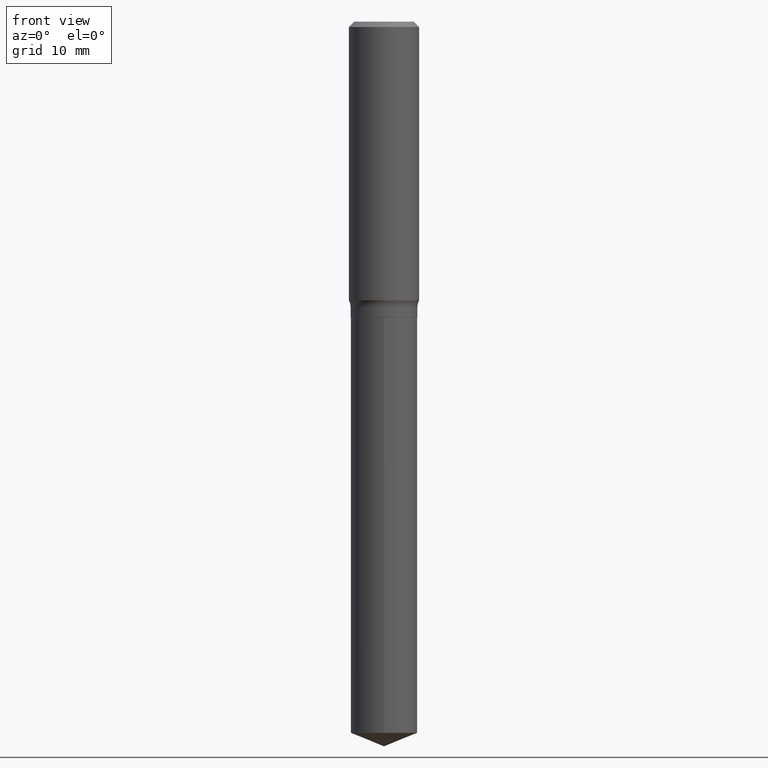
[diagram: clean part render]
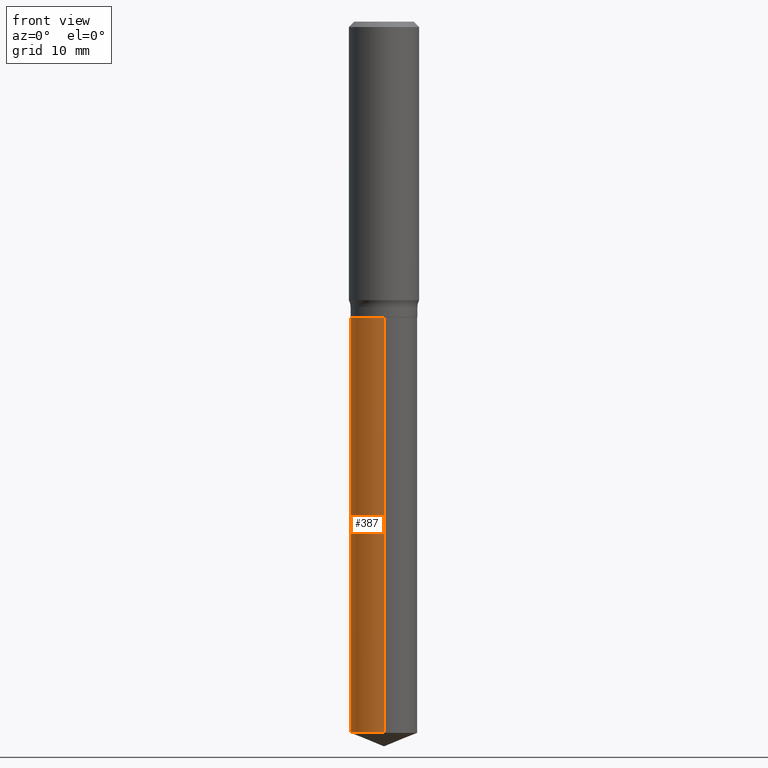
[diagram: same view with one face highlighted and labeled with its STEP entity id]
A machine part, front view. The second image highlights one B-rep face of the part: STEP entity #387.
In plain terms, the highlighted cylindrical surface (edge-blend (fillet) strip) has radius 4.7498 mm, axis along (-0, 0, 1).
Its self-contained STEP definition (entity closure, byte-faithful):
#25 = CIRCLE ( 'NONE', #307, 0.1869999999999999996 ) ;
#35 = ORIENTED_EDGE ( 'NONE', *, *, #468, .T. ) ;
#36 = FACE_OUTER_BOUND ( 'NONE', #207, .T. ) ;
#44 = CARTESIAN_POINT ( 'NONE',  ( 4.043338124146503856E-29, -5.772815245643255193E-15, -1.653399999999999537 ) ) ;
#46 = EDGE_CURVE ( 'NONE', #192, #179, #279, .T. ) ;
#69 = CARTESIAN_POINT ( 'NONE',  ( 1.328714915871427774E-15, 0.1869999999999942542, -1.653400000000000203 ) ) ;
#113 = DIRECTION ( 'NONE',  ( -6.982962677686266711E-15, -1.000000000000000000, 2.921762560068730595E-15 ) ) ;
#145 = LINE ( 'NONE', #297, #465 ) ;
#153 = CARTESIAN_POINT ( 'NONE',  ( 4.043338124146503856E-29, -5.772815245643255193E-15, -1.653399999999999537 ) ) ;
#170 = DIRECTION ( 'NONE',  ( -2.445507172700810819E-29, 3.491426395809013811E-15, 1.000000000000000000 ) ) ;
#179 = VERTEX_POINT ( 'NONE', #372 ) ;
#185 = EDGE_CURVE ( 'NONE', #435, #192, #252, .T. ) ;
#186 = CYLINDRICAL_SURFACE ( 'NONE', #423, 0.1869999999999999996 ) ;
#192 = VERTEX_POINT ( 'NONE', #298 ) ;
#207 = EDGE_LOOP ( 'NONE', ( #448, #35, #426, #368 ) ) ;
#231 = CARTESIAN_POINT ( 'NONE',  ( 1.328714915871484769E-15, 0.1869999999999861218, -3.979447095768826603 ) ) ;
#252 = LINE ( 'NONE', #69, #419 ) ;
#278 = DIRECTION ( 'NONE',  ( -6.982962677686266711E-15, -1.000000000000000000, 2.921762560068730595E-15 ) ) ;
#279 = CIRCLE ( 'NONE', #346, 0.1869999999999999996 ) ;
#297 = CARTESIAN_POINT ( 'NONE',  ( -1.305814020727291375E-15, -0.1870000000000057727, -1.653399999999999093 ) ) ;
#298 = CARTESIAN_POINT ( 'NONE',  ( 1.328714915871484966E-15, 0.1869999999999942542, -1.653400000000000203 ) ) ;
#307 = AXIS2_PLACEMENT_3D ( 'NONE', #399, #170, #278 ) ;
#346 = AXIS2_PLACEMENT_3D ( 'NONE', #44, #433, #402 ) ;
#368 = ORIENTED_EDGE ( 'NONE', *, *, #46, .F. ) ;
#372 = CARTESIAN_POINT ( 'NONE',  ( -1.305814020727291375E-15, -0.1870000000000057727, -1.653399999999999093 ) ) ;
#376 = EDGE_CURVE ( 'NONE', #381, #179, #145, .T. ) ;
#381 = VERTEX_POINT ( 'NONE', #447 ) ;
#387 = ADVANCED_FACE ( 'NONE', ( #36 ), #186, .T. ) ;
#399 = CARTESIAN_POINT ( 'NONE',  ( 9.731702980889057427E-29, -1.389403747370543282E-14, -3.979447095768825715 ) ) ;
#402 = DIRECTION ( 'NONE',  ( -6.982962677686266711E-15, -1.000000000000000000, 2.921762560068730595E-15 ) ) ;
#407 = DIRECTION ( 'NONE',  ( -2.445507172700810819E-29, 3.491426395809013417E-15, 1.000000000000000000 ) ) ;
#419 = VECTOR ( 'NONE', #407, 39.37007874015748143 ) ;
#423 = AXIS2_PLACEMENT_3D ( 'NONE', #153, #467, #113 ) ;
#426 = ORIENTED_EDGE ( 'NONE', *, *, #376, .T. ) ;
#433 = DIRECTION ( 'NONE',  ( -2.445507172700810819E-29, 3.491426395809013811E-15, 1.000000000000000000 ) ) ;
#435 = VERTEX_POINT ( 'NONE', #231 ) ;
#447 = CARTESIAN_POINT ( 'NONE',  ( -1.305814020727234577E-15, -0.1870000000000139051, -3.979447095768825271 ) ) ;
#448 = ORIENTED_EDGE ( 'NONE', *, *, #185, .F. ) ;
#456 = DIRECTION ( 'NONE',  ( -2.445507172700810819E-29, 3.491426395809013417E-15, 1.000000000000000000 ) ) ;
#465 = VECTOR ( 'NONE', #456, 39.37007874015748143 ) ;
#467 = DIRECTION ( 'NONE',  ( -2.445507172700810819E-29, 3.491426395809013811E-15, 1.000000000000000000 ) ) ;
#468 = EDGE_CURVE ( 'NONE', #435, #381, #25, .T. ) ;